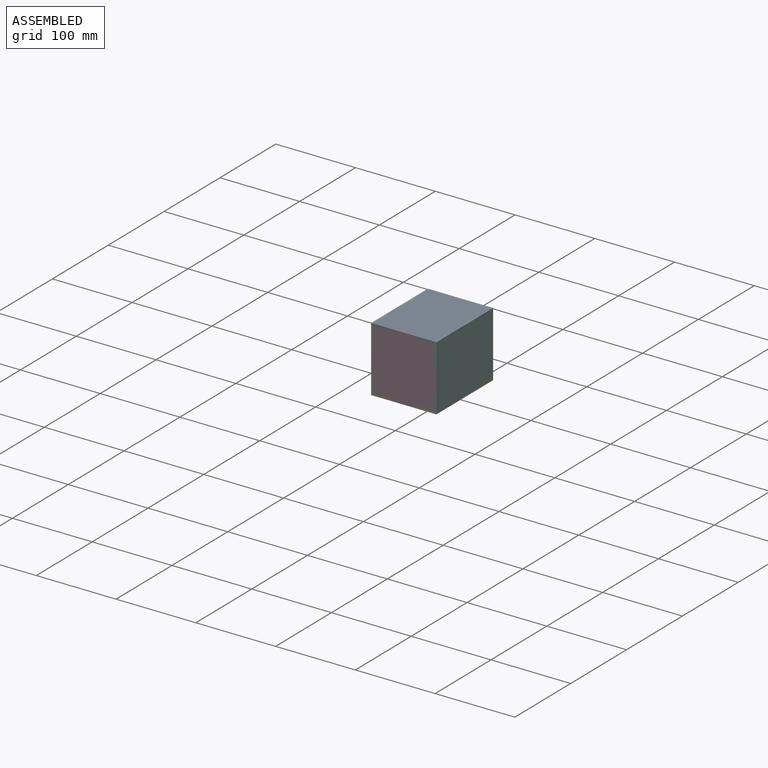
[diagram: assembled view]
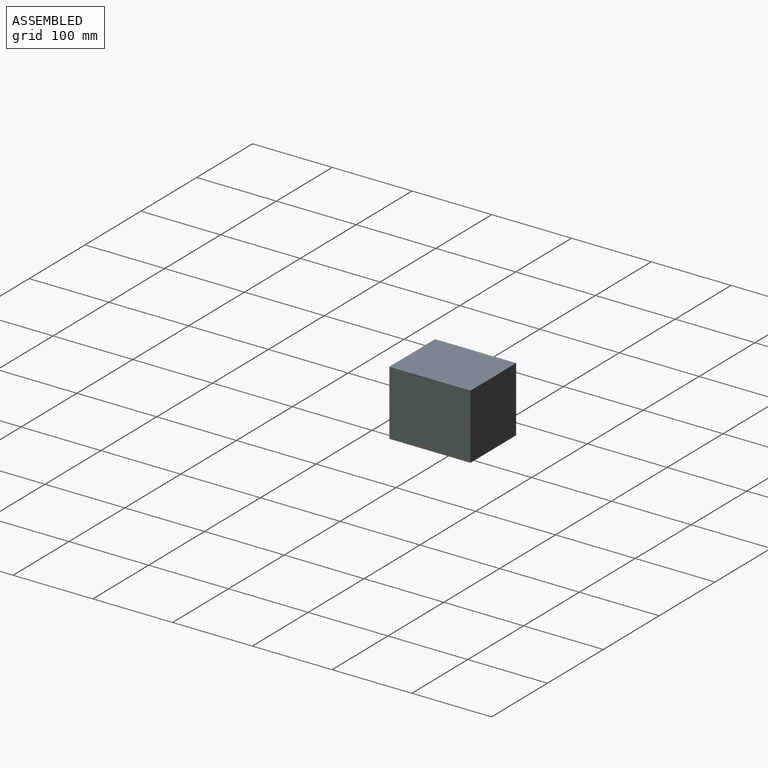
[diagram: assembled view, second angle]
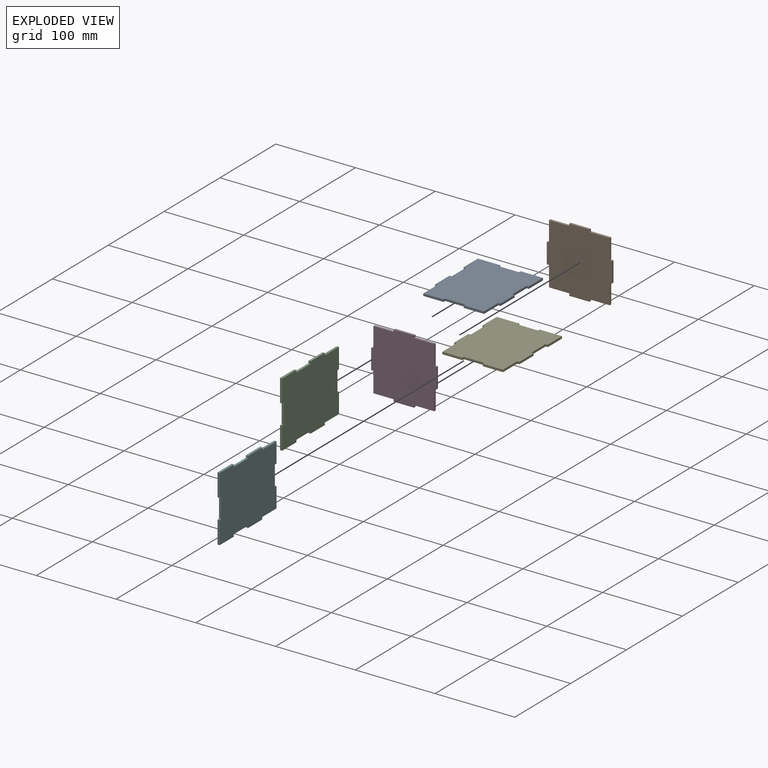
[diagram: exploded view]
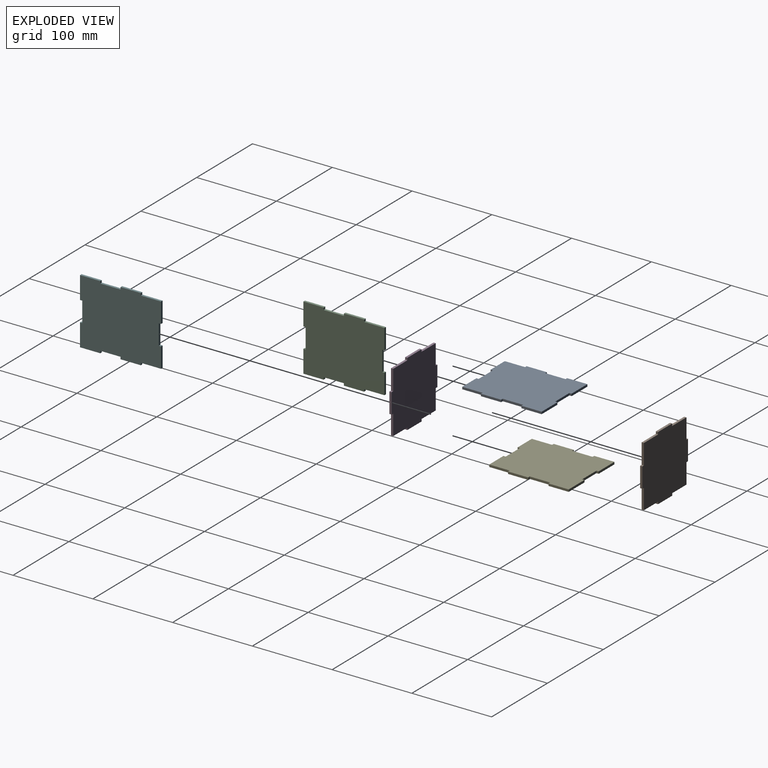
[diagram: exploded view, second angle]
ASSEMBLY  parts=6 mates=15
PART A: 26 faces, bbox 81.8x101.6x2.8 mm
  f0: plane 2.79x2.79mm, normal (-1,0,0), area 7.8mm2, adj f1,f23,f24,f25
  f1: plane 28.19x2.79mm, normal (0,-1,0), area 78.8mm2, adj f0,f2,f24,f25
  f2: plane 25.4x2.79mm, normal (1,0,0), area 71mm2, adj f1,f3,f24,f25
  f3: plane 2.79x2.79mm, normal (0,1,0), area 7.8mm2, adj f2,f4,f24,f25
  f4: plane 25.4x2.79mm, normal (1,0,0), area 71mm2, adj f3,f5,f24,f25
  f5: plane 2.79x2.79mm, normal (0,-1,0), area 7.8mm2, adj f4,f6,f24,f25
  f6: plane 25.4x2.79mm, normal (1,0,0), area 71mm2, adj f5,f7,f24,f25
  f7: plane 2.79x2.79mm, normal (0,1,0), area 7.8mm2, adj f6,f8,f24,f25
  f8: plane 25.4x2.79mm, normal (1,0,0), area 71mm2, adj f7,f9,f24,f25
  f9: plane 25.4x2.79mm, normal (0,1,0), area 71mm2, adj f8,f10,f24,f25
  f10: plane 2.79x2.79mm, normal (-1,0,0), area 7.8mm2, adj f9,f11,f24,f25
  f11: plane 25.4x2.79mm, normal (0,1,0), area 71mm2, adj f10,f12,f24,f25
  f12: plane 2.79x2.79mm, normal (1,0,0), area 7.8mm2, adj f11,f13,f24,f25
  f13: plane 25.4x2.79mm, normal (0,1,0), area 71mm2, adj f12,f14,f24,f25
  f14: plane 25.4x2.79mm, normal (-1,0,0), area 71mm2, adj f13,f15,f24,f25
  f15: plane 2.79x2.79mm, normal (0,1,0), area 7.8mm2, adj f14,f16,f24,f25
  f16: plane 25.4x2.79mm, normal (-1,0,0), area 71mm2, adj f15,f17,f24,f25
  f17: plane 2.79x2.79mm, normal (0,-1,0), area 7.8mm2, adj f16,f18,f24,f25
  f18: plane 25.4x2.79mm, normal (-1,0,0), area 71mm2, adj f17,f19,f24,f25
  f19: plane 2.79x2.79mm, normal (0,1,0), area 7.8mm2, adj f18,f20,f24,f25
  f20: plane 25.4x2.79mm, normal (-1,0,0), area 71mm2, adj f19,f21,f24,f25
  f21: plane 28.19x2.79mm, normal (0,-1,0), area 78.8mm2, adj f20,f22,f24,f25
  f22: plane 2.79x2.79mm, normal (1,0,0), area 7.8mm2, adj f21,f23,f24,f25
  f23: plane 25.4x2.79mm, normal (0,-1,0), area 71mm2, adj f0,f22,f24,f25
  f24: plane 101.6x81.79mm, normal (0,0,1), area 7883.9mm2, adj f0,f1,f2,f3,f4,f5,f6,f7
  f25: plane 101.6x81.79mm, normal (0,0,-1), area 7883.9mm2, adj f0,f1,f2,f3,f4,f5,f6,f7
PART B: 22 faces, bbox 81.8x81.8x2.8 mm
  f0: plane 2.79x2.79mm, normal (-1,0,0), area 7.8mm2, adj f1,f19,f20,f21
  f1: plane 25.4x2.79mm, normal (0,1,0), area 71mm2, adj f0,f2,f20,f21
  f2: plane 25.4x2.79mm, normal (-1,0,0), area 71mm2, adj f1,f3,f20,f21
  f3: plane 2.79x2.79mm, normal (0,1,0), area 7.8mm2, adj f2,f4,f20,f21
  f4: plane 25.4x2.79mm, normal (-1,0,0), area 71mm2, adj f3,f5,f20,f21
  f5: plane 2.79x2.79mm, normal (0,-1,0), area 7.8mm2, adj f4,f6,f20,f21
  f6: plane 25.4x2.79mm, normal (-1,0,0), area 71mm2, adj f5,f7,f20,f21
  f7: plane 25.4x2.79mm, normal (0,-1,0), area 71mm2, adj f6,f8,f20,f21
  f8: plane 2.79x2.79mm, normal (-1,0,0), area 7.8mm2, adj f7,f9,f20,f21
  f9: plane 25.4x2.79mm, normal (0,-1,0), area 71mm2, adj f8,f10,f20,f21
  f10: plane 2.79x2.79mm, normal (1,0,0), area 7.8mm2, adj f9,f11,f20,f21
  f11: plane 25.4x2.79mm, normal (0,-1,0), area 71mm2, adj f10,f12,f20,f21
  f12: plane 25.4x2.79mm, normal (1,0,0), area 71mm2, adj f11,f13,f20,f21
  f13: plane 2.79x2.79mm, normal (0,-1,0), area 7.8mm2, adj f12,f14,f20,f21
  f14: plane 25.4x2.79mm, normal (1,0,0), area 71mm2, adj f13,f15,f20,f21
  f15: plane 2.79x2.79mm, normal (0,1,0), area 7.8mm2, adj f14,f16,f20,f21
  f16: plane 25.4x2.79mm, normal (1,0,0), area 71mm2, adj f15,f17,f20,f21
  f17: plane 25.4x2.79mm, normal (0,1,0), area 71mm2, adj f16,f18,f20,f21
  f18: plane 2.79x2.79mm, normal (1,0,0), area 7.8mm2, adj f17,f19,f20,f21
  f19: plane 25.4x2.79mm, normal (0,1,0), area 71mm2, adj f0,f18,f20,f21
  f20: plane 81.79x81.79mm, normal (0,0,1), area 6090.3mm2, adj f0,f1,f2,f3,f4,f5,f6,f7
  f21: plane 81.79x81.79mm, normal (0,0,-1), area 6090.3mm2, adj f0,f1,f2,f3,f4,f5,f6,f7
PART C: same geometry as A
PART D: same geometry as B
PART E: same geometry as A
PART F: same geometry as A
PLACE A rot(axis=(1,0,0),180deg) t=(-216.54,114.33,-83.49)mm
PLACE B rot(axis=(-1,0,0),90deg) t=(-196.57,137.68,-154.97)mm
PLACE C rot(axis=(0,1,0),90deg) t=(-257.44,65.02,-124.38)mm
PLACE D rot(axis=(-1,0,0),90deg) t=(-196.57,38.88,-154.97)mm
PLACE E rot(axis=(0,0,1),180deg) t=(-216.54,114.33,-165.28)mm
PLACE F rot(axis=(0,-1,0),90deg) t=(-175.65,65.02,-124.38)mm
MATE planar B.f20 <-> A.f21  axis (0,1,0) through (-216.54,140.48,-124.38)mm
MATE planar C.f21 <-> A.f13  axis (0,-1,0) through (-256.04,38.88,-97.59)mm
MATE planar C.f20 <-> A.f25  axis (0,0,1) through (-254.64,51.58,-83.49)mm
MATE planar F.f1 <-> A.f9  axis (0,-1,0) through (-177.05,38.88,-97.59)mm
MATE planar E.f24 <-> C.f4  axis (0,0,1) through (-216.54,90.13,-162.48)mm
MATE planar E.f16 <-> F.f25  axis (1,0,0) through (-175.65,76.98,-163.88)mm
MATE planar D.f4 <-> C.f25  axis (-1,0,0) through (-257.44,40.27,-124.38)mm
MATE planar C.f24 <-> A.f18  axis (1,0,0) through (-254.64,89.22,-124.38)mm
MATE planar B.f14 <-> F.f25  axis (1,0,0) through (-175.65,139.08,-124.38)mm
MATE planar B.f9 <-> A.f25  axis (0,0,1) through (-216.54,139.08,-83.49)mm
MATE planar F.f4 <-> A.f24  axis (0,0,1) through (-177.05,76.98,-86.28)mm
MATE planar D.f21 <-> A.f9  axis (0,-1,0) through (-216.54,38.88,-124.38)mm
MATE planar E.f1 <-> C.f9  axis (0,1,0) through (-243.34,140.48,-163.88)mm
MATE planar F.f25 <-> A.f6  axis (1,0,0) through (-175.65,89.22,-124.38)mm
MATE planar D.f9 <-> A.f25  axis (0,0,1) through (-203.84,40.27,-83.49)mm
